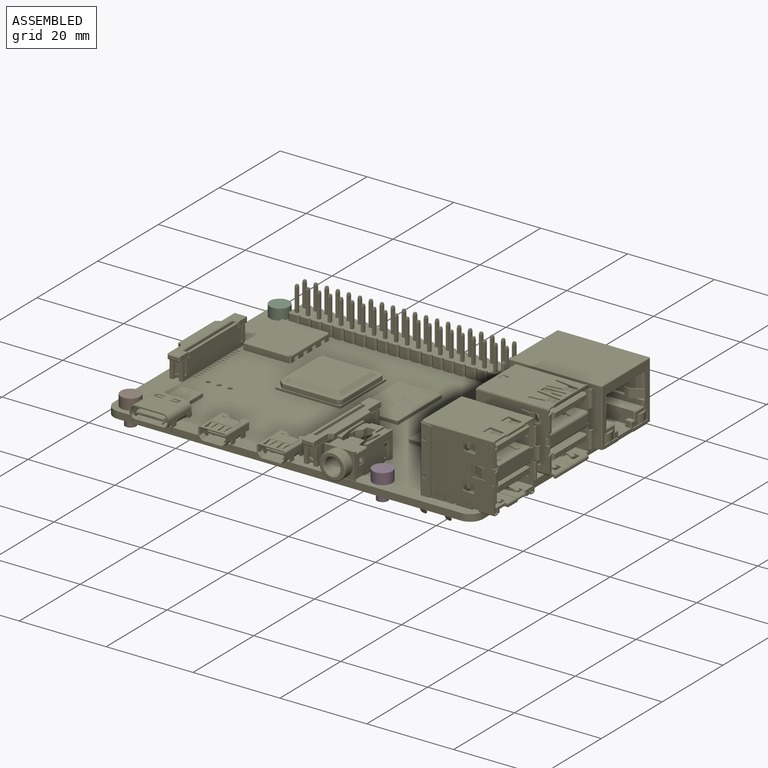
[diagram: assembled view]
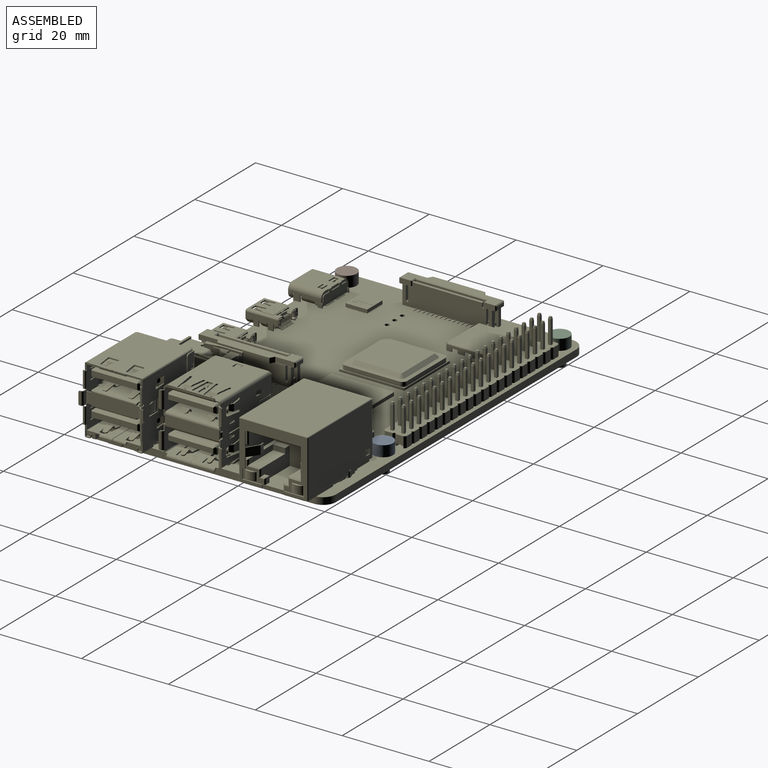
[diagram: assembled view, second angle]
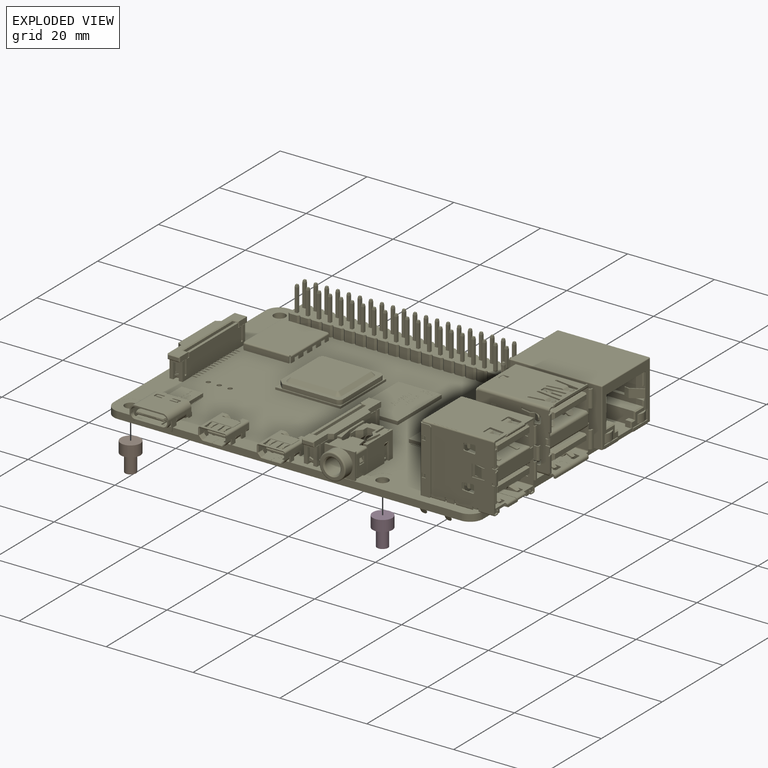
[diagram: exploded view]
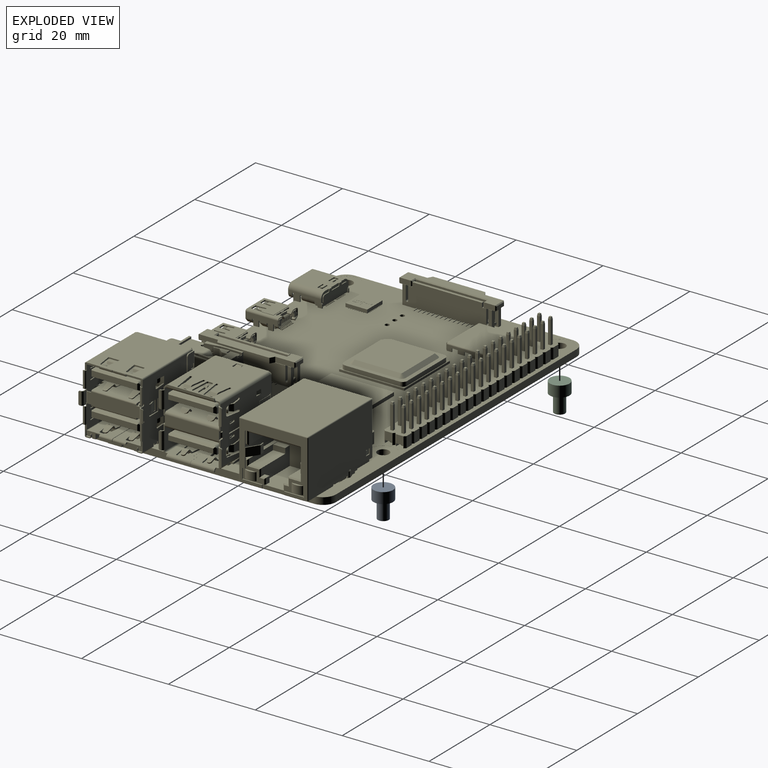
[diagram: exploded view, second angle]
FCSTD DOCUMENT  (FreeCAD 1.0R39109 (Git))
Label: asm_rpi
License: All rights reserved
LicenseURL: https://en.wikipedia.org/wiki/All_rights_reserved
objects: App::Link×5, App::FeaturePython×5, Assembly::JointGroup×1, Assembly::AssemblyObject×1
EXTERNAL_REF file=../downloads/raspberry_pi_4_model_b.FCStd obj=Raspberry_Pi_4_Model_B
EXTERNAL_REF file=../secondary/bolts.FCStd obj=Body003

FEATURE [App::Link] Raspberry_Pi_4_Model_B  label="Raspberry Pi 4 Model B"
  LinkPlacement = pos=(0,8.25,-5.85) rot=(1,0,0;1.5708rad)
  LinkedObject = -> <external ../downloads/raspberry_pi_4_model_b.FCStd>#Raspberry_Pi_4_Model_B
  Placement = pos=(0,8.25,-5.85) rot=(1,0,0;1.5708rad)
FEATURE [App::FeaturePython] GroundedJoint  # Assembly grounded joint (typed FeaturePython)
  ObjectToGround = -> Raspberry_Pi_4_Model_B
  Placement = pos=(0,8.25,-5.85) rot=(1,0,0;1.5708rad)
FEATURE [App::Link] Hex_screw_M2_5_04_0  label="Hex screw M2.5 04.0"
  LinkPlacement = pos=(54.5575,25.7632,-2.56) rot=(-0.707107,0.707107,0;3.14159rad)
  LinkedObject = -> <external ../secondary/bolts.FCStd>#Body003
  Placement = pos=(54.5575,25.7632,-2.56) rot=(-0.707107,0.707107,0;3.14159rad)
FEATURE [App::Link] Hex_screw_M2_5_04_001  label="Hex screw M2.5 04.001"
  LinkPlacement = pos=(-3.44249,-23.2368,-2.56001) rot=(-0.707107,0.707107,0;3.14159rad)
  LinkedObject = -> <external ../secondary/bolts.FCStd>#Body003
  Placement = pos=(-3.44249,-23.2368,-2.56001) rot=(-0.707107,0.707107,0;3.14159rad)
FEATURE [App::Link] Hex_screw_M2_5_04_002  label="Hex screw M2.5 04.002"
  LinkPlacement = pos=(-3.44249,25.7632,-2.56) rot=(-0.707107,0.707107,0;3.14159rad)
  LinkedObject = -> <external ../secondary/bolts.FCStd>#Body003
  Placement = pos=(-3.44249,25.7632,-2.56) rot=(-0.707107,0.707107,0;3.14159rad)
FEATURE [App::Link] Hex_screw_M2_5_04_003  label="Hex screw M2.5 04.003"
  LinkPlacement = pos=(54.5575,-23.2368,-2.56001) rot=(-0.707107,0.707107,0;3.14159rad)
  LinkedObject = -> <external ../secondary/bolts.FCStd>#Body003
  Placement = pos=(54.5575,-23.2368,-2.56001) rot=(-0.707107,0.707107,0;3.14159rad)
FEATURE [App::FeaturePython] Joint  label="Fixed"  # Assembly joint (typed FeaturePython)
  Activated = true
  AngleMax = 0
  AngleMin = 0
  Detach1 = false
  Detach2 = false
  Distance = 0
  Distance2 = 0
  EnableAngleMax = false
  EnableAngleMin = false
  EnableLengthMax = false
  EnableLengthMin = false
  JointType = 0 (Fixed)
  LengthMax = 0
  LengthMin = 0
  Placement1 = pos=(-6.98683,35.5575,2.5) rot=(0,0,1;0rad)
  Placement2 = pos=(-39,0.79,-24.5) rot=(0.57735,0.57735,0.57735;4.18879rad)
  Reference1 = -> Assembly [Hex_screw_M2_5_04_002.Edge4,Hex_screw_M2_5_04_002.Edge4]
  Reference2 = -> Assembly [Raspberry_Pi_4_Model_B.Part__Feature.Edge62,Raspberry_Pi_4_Model_B.Part__Feature.Edge62]
FEATURE [App::FeaturePython] Joint001  label="Fixed001"  # Assembly joint (typed FeaturePython)
  Activated = true
  AngleMax = 0
  AngleMin = 0
  Detach1 = false
  Detach2 = false
  Distance = 0
  Distance2 = 0
  EnableAngleMax = false
  EnableAngleMin = false
  EnableLengthMax = false
  EnableLengthMin = false
  JointType = 0 (Fixed)
  LengthMax = 0
  LengthMin = 0
  Placement1 = pos=(-6.98683,35.5575,2.5) rot=(0,0,1;0rad)
  Placement2 = pos=(19,0.79,-24.5) rot=(0.57735,0.57735,0.57735;4.18879rad)
  Reference1 = -> Assembly [Hex_screw_M2_5_04_0.Edge4,Hex_screw_M2_5_04_0.Edge4]
  Reference2 = -> Assembly [Raspberry_Pi_4_Model_B.Part__Feature.Edge70,Raspberry_Pi_4_Model_B.Part__Feature.Edge70]
FEATURE [App::FeaturePython] Joint002  label="Fixed002"  # Assembly joint (typed FeaturePython)
  Activated = true
  AngleMax = 0
  AngleMin = 0
  Detach1 = false
  Detach2 = false
  Distance = 0
  Distance2 = 0
  EnableAngleMax = false
  EnableAngleMin = false
  EnableLengthMax = false
  EnableLengthMin = false
  JointType = 0 (Fixed)
  LengthMax = 0
  LengthMin = 0
  Placement1 = pos=(-6.98683,35.5575,2.5) rot=(0,0,1;0rad)
  Placement2 = pos=(19,0.79,24.5) rot=(0.57735,0.57735,0.57735;4.18879rad)
  Reference1 = -> Assembly [Hex_screw_M2_5_04_003.Edge4,Hex_screw_M2_5_04_003.Edge4]
  Reference2 = -> Assembly [Raspberry_Pi_4_Model_B.Part__Feature.Edge336,Raspberry_Pi_4_Model_B.Part__Feature.Edge336]
FEATURE [App::FeaturePython] Joint003  label="Fixed003"  # Assembly joint (typed FeaturePython)
  Activated = true
  AngleMax = 0
  AngleMin = 0
  Detach1 = false
  Detach2 = false
  Distance = 0
  Distance2 = 0
  EnableAngleMax = false
  EnableAngleMin = false
  EnableLengthMax = false
  EnableLengthMin = false
  JointType = 0 (Fixed)
  LengthMax = 0
  LengthMin = 0
  Placement1 = pos=(-6.98683,35.5575,2.5) rot=(0,0,1;0rad)
  Placement2 = pos=(-39,0.79,24.5) rot=(0.57735,0.57735,0.57735;4.18879rad)
  Reference1 = -> Assembly [Hex_screw_M2_5_04_001.Edge4,Hex_screw_M2_5_04_001.Edge4]
  Reference2 = -> Assembly [Raspberry_Pi_4_Model_B.Part__Feature.Edge340,Raspberry_Pi_4_Model_B.Part__Feature.Edge340]
FEATURE [Assembly::JointGroup] Joints
  Group = -> [GroundedJoint,Joint,Joint001,Joint002,Joint003]
FEATURE [Assembly::AssemblyObject] Assembly  label="asm_rpi"
  Group = -> [Joints,Raspberry_Pi_4_Model_B,GroundedJoint,Hex_screw_M2_5_04_0,Hex_screw_M2_5_04_001,Hex_screw_M2_5_04_002,Hex_screw_M2_5_04_003,Joint,Joint001,Joint002,Joint003]
  Origin = -> Origin
  Type = Assembly

RESOLVED EXTERNAL PARTS (link-assembly join: the EXTERNAL_REF files above that resolve inside this repo's crawl, each included once):
---- part ../secondary/bolts.FCStd = doc fcstd_e978128cc4a6 ----
FCSTD DOCUMENT  (FreeCAD 1.0R39109 (Git))
Label: bolts
License: All rights reserved
LicenseURL: https://en.wikipedia.org/wiki/All_rights_reserved
objects: Sketcher::SketchObject×8, PartDesign::Pad×8, Part::Feature×7, PartDesign::Body×5
note: 52 computed .brp shape members not serialized (recipe doc carries the construction recipe); baked Part::Feature solids carry a one-line shape summary decoded from their .brp

FEATURE [Part::Feature] BOLTS_part  label="Hex socket head cap screw DIN 912 M4 10.0"
  Placement = pos=(0,-31,0) rot=(0,0,1;0rad)
  shape: bbox 7 x 7 x 24 mm, 12 faces (baked)
FEATURE [Part::Feature] BOLTS_part001  label="Hex socket head cap screw DIN 912 M4 15.0"
  Placement = pos=(0,-20,0) rot=(0,0,1;0rad)
  shape: bbox 7 x 7 x 24 mm, 12 faces (baked)
FEATURE [Part::Feature] BOLTS_part002  label="Hex socket head cap screw DIN 912 M4 20.0"
  Placement = pos=(0,-10,0) rot=(0,0,1;0rad)
  shape: bbox 7 x 7 x 24 mm, 12 faces (baked)
FEATURE [Part::Feature] BOLTS_part003  label="Hex socket head cap screw DIN 912 M5 10.0"
  Placement = pos=(0,-1,0) rot=(0,0,1;0rad)
  shape: bbox 8.5 x 8.5 x 27 mm, 12 faces (baked)
FEATURE [Part::Feature] BOLTS_part004  label="Hex socket head cap screw DIN 912 M5 15.0"
  Placement = pos=(0,9,0) rot=(0,0,1;0rad)
  shape: bbox 8.5 x 8.5 x 27 mm, 12 faces (baked)
FEATURE [Part::Feature] BOLTS_part005  label="Hex socket head cap screw DIN 912 M5 20.0"
  Placement = pos=(0,19,0) rot=(0,0,1;0rad)
  shape: bbox 8.5 x 8.5 x 27 mm, 12 faces (baked)
FEATURE [Part::Feature] BOLTS_part006  label="Hex socket head cap screw DIN 912 M2.5 10.0"
  Placement = pos=(0,35,0) rot=(0,0,1;0rad)
  shape: bbox 4.5 x 4.5 x 19.5 mm, 12 faces (baked)
FEATURE [Sketcher::SketchObject] Sketch
  ArcFitTolerance = 1e-06
  AttachmentSupport = -> [XY_Plane001]
  FullyConstrained = false
  MakeInternals = false
  MapMode = 5
  sketch-geometry (1):
    g0: Circle CenterX=-6.98683 CenterY=35.5575 CenterZ=0 NormalX=0 NormalY=0 NormalZ=1 AngleXU=0 Radius=2.25
  constraints (1):
    c: Diameter(g0) = 4.5
FEATURE [PartDesign::Pad] Pad
  Direction = (0,0,1)
  Length = 2.5
  Length2 = 10
  Profile = -> Sketch
  ReferenceAxis = -> Sketch [N_Axis]
  Refine = true
  Suppressed = false
  Type = 0
FEATURE [Sketcher::SketchObject] Sketch001
  ArcFitTolerance = 1e-06
  AttachmentSupport = -> [Pad]
  ExternalGeometry = -> [Pad]
  FullyConstrained = true
  MakeInternals = false
  MapMode = 5
  Placement = pos=(0,0,2.5) rot=(0,0,1;0rad)
  sketch-geometry (1):
    g0: Circle CenterX=-6.98683 CenterY=35.5575 CenterZ=0 NormalX=0 NormalY=0 NormalZ=1 AngleXU=0 Radius=1.25
  constraints (2):
    c: Coincident(g0,g-3)
    c: Diameter(g0) = 2.5
FEATURE [PartDesign::Pad] Pad001
  BaseFeature = -> Pad
  Direction = (0,0,1)
  Length = 8
  Length2 = 10
  Profile = -> Sketch001
  ReferenceAxis = -> Sketch001 [N_Axis]
  Refine = true
  Suppressed = false
  Type = 0
FEATURE [PartDesign::Body] Body001  label="Hex screw M2.5 08.0"
  AllowCompound = false
  Group = -> [Sketch,Pad,Sketch001,Pad001]
  Origin = -> Origin001
  Tip = -> Pad001
FEATURE [Sketcher::SketchObject] Sketch002
  ArcFitTolerance = 1e-06
  AttachmentSupport = -> [XY_Plane002]
  FullyConstrained = false
  MakeInternals = false
  MapMode = 5
  sketch-geometry (1):
    g0: Circle CenterX=-6.98683 CenterY=35.5575 CenterZ=0 NormalX=0 NormalY=0 NormalZ=1 AngleXU=0 Radius=2
  constraints (1):
    c: Diameter(g0) = 4
FEATURE [PartDesign::Pad] Pad002
  Direction = (0,0,1)
  Length = 10
  Length2 = 10
  Profile = -> Sketch002
  ReferenceAxis = -> Sketch002 [N_Axis]
  Refine = true
  Suppressed = false
  Type = 0
FEATURE [Sketcher::SketchObject] Sketch003
  ArcFitTolerance = 1e-06
  AttachmentSupport = -> [Pad002]
  FullyConstrained = false
  MakeInternals = false
  MapMode = 5
  Placement = pos=(0,0,10) rot=(0,0,1;0rad)
  sketch-geometry (1):
    g0: Circle CenterX=-6.98683 CenterY=35.5575 CenterZ=0 NormalX=0 NormalY=0 NormalZ=1 AngleXU=0 Radius=3.5
  constraints (1):
    c: Diameter(g0) = 7
FEATURE [PartDesign::Pad] Pad003
  BaseFeature = -> Pad002
  Direction = (0,0,1)
  Length = 4
  Length2 = 10
  Profile = -> Sketch003
  ReferenceAxis = -> Sketch003 [N_Axis]
  Refine = true
  Suppressed = false
  Type = 0
FEATURE [PartDesign::Body] Body002  label="Hex screw M4 10.0"
  AllowCompound = false
  Group = -> [Sketch002,Pad002,Sketch003,Pad003]
  Origin = -> Origin002
  Tip = -> Pad003
FEATURE [Sketcher::SketchObject] Sketch004
  ArcFitTolerance = 1e-06
  AttachmentSupport = -> [XY_Plane003]
  FullyConstrained = false
  MakeInternals = false
  MapMode = 5
  sketch-geometry (1):
    g0: Circle CenterX=-6.98683 CenterY=35.5575 CenterZ=0 NormalX=0 NormalY=0 NormalZ=1 AngleXU=0 Radius=2.25
  constraints (1):
    c: Diameter(g0) = 4.5
FEATURE [PartDesign::Pad] Pad004
  Direction = (0,0,1)
  Length = 2.5
  Length2 = 10
  Profile = -> Sketch004
  ReferenceAxis = -> Sketch004 [N_Axis]
  Refine = true
  Suppressed = false
  Type = 0
FEATURE [Sketcher::SketchObject] Sketch005
  ArcFitTolerance = 1e-06
  AttachmentSupport = -> [Pad004]
  ExternalGeometry = -> [Pad004]
  FullyConstrained = true
  MakeInternals = false
  MapMode = 5
  Placement = pos=(0,0,2.5) rot=(0,0,1;0rad)
  sketch-geometry (1):
    g0: Circle CenterX=-6.98683 CenterY=35.5575 CenterZ=0 NormalX=0 NormalY=0 NormalZ=1 AngleXU=0 Radius=1.25
  constraints (2):
    c: Coincident(g0,g-3)
    c: Diameter(g0) = 2.5
FEATURE [PartDesign::Pad] Pad005
  BaseFeature = -> Pad004
  Direction = (0,0,1)
  Length = 4
  Length2 = 10
  Profile = -> Sketch005
  ReferenceAxis = -> Sketch005 [N_Axis]
  Refine = true
  Suppressed = false
  Type = 0
FEATURE [PartDesign::Body] Body003  label="Hex screw M2.5 04.0"
  AllowCompound = false
  Group = -> [Sketch004,Pad004,Sketch005,Pad005]
  Origin = -> Origin003
  Tip = -> Pad005
FEATURE [PartDesign::Body] Body  label="Bolts"
  AllowCompound = false
  Origin = -> Origin
FEATURE [Sketcher::SketchObject] Sketch006
  ArcFitTolerance = 1e-06
  AttachmentSupport = -> [XY_Plane004]
  FullyConstrained = false
  MakeInternals = false
  MapMode = 5
  sketch-geometry (1):
    g0: Circle CenterX=-6.98683 CenterY=35.5575 CenterZ=0 NormalX=0 NormalY=0 NormalZ=1 AngleXU=0 Radius=2.5
  constraints (1):
    c: Diameter(g0) = 5
FEATURE [PartDesign::Pad] Pad006
  Direction = (0,0,1)
  Length = 10
  Length2 = 10
  Profile = -> Sketch006
  ReferenceAxis = -> Sketch006 [N_Axis]
  Refine = true
  Suppressed = false
  Type = 0
FEATURE [Sketcher::SketchObject] Sketch007
  ArcFitTolerance = 1e-06
  AttachmentSupport = -> [Pad006]
  FullyConstrained = false
  MakeInternals = false
  MapMode = 5
  Placement = pos=(0,0,10) rot=(0,0,1;0rad)
  sketch-geometry (1):
    g0: Circle CenterX=-6.98683 CenterY=35.5575 CenterZ=0 NormalX=0 NormalY=0 NormalZ=1 AngleXU=0 Radius=4.25
  constraints (1):
    c: Diameter(g0) = 8.5
FEATURE [PartDesign::Pad] Pad007
  BaseFeature = -> Pad006
  Direction = (0,0,1)
  Length = 4
  Length2 = 10
  Profile = -> Sketch007
  ReferenceAxis = -> Sketch007 [N_Axis]
  Refine = true
  Suppressed = false
  Type = 0
FEATURE [PartDesign::Body] Body004  label="Hex screw M5 10.0"
  AllowCompound = false
  Group = -> [Sketch006,Pad006,Sketch007,Pad007]
  Origin = -> Origin004
  Tip = -> Pad007
